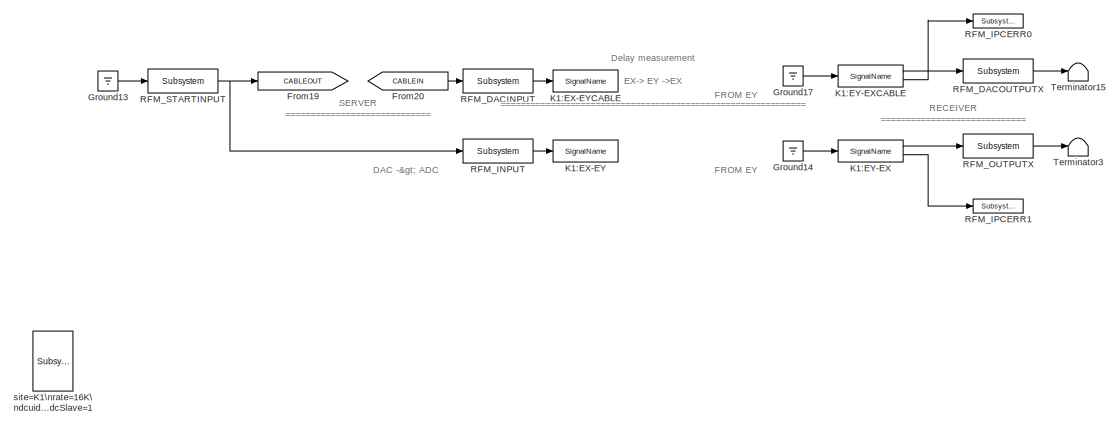
[diagram: root canvas - part 1/2, full width, top band]
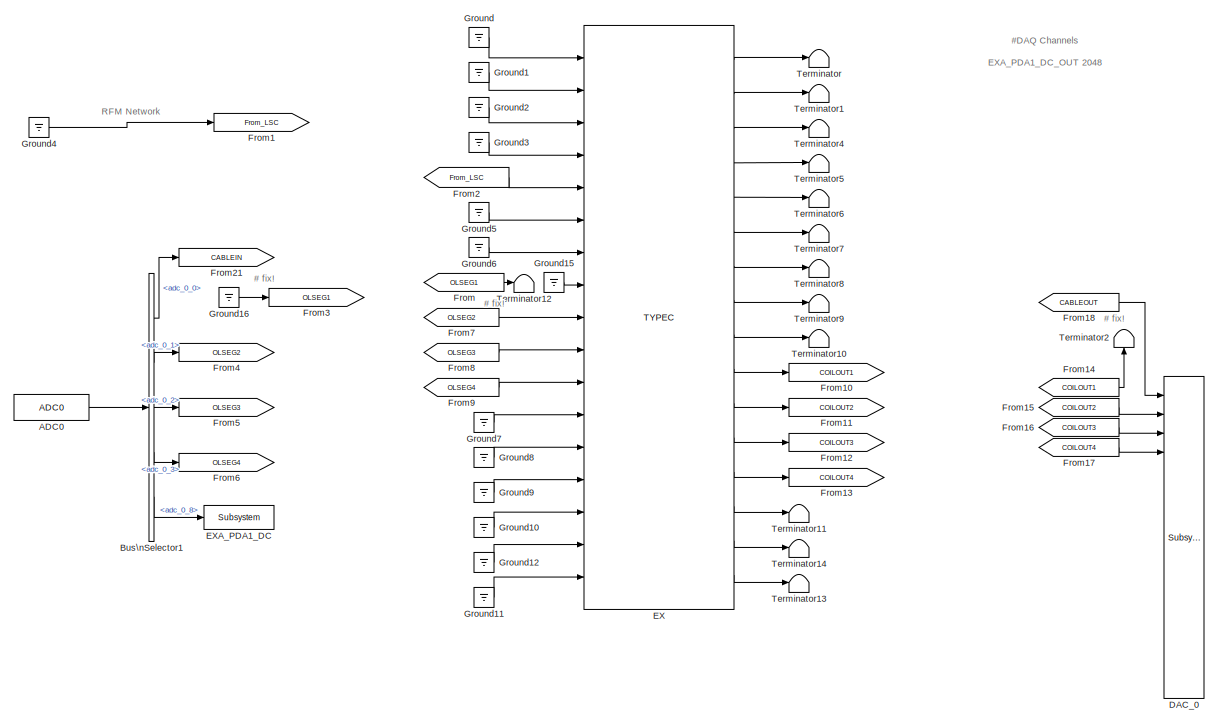
[diagram: root canvas - part 2/2, full width, bottom band]
MODEL k1visex
KIND model
BLOCK [Reference] ADC0  REF=cdsAdcx0/ADC0
  AttributesFormatString = %<Description>\\n%<Tag>
  Description = type-GSC_16AI64SSA\ncard_num=0
  Ports = [0, 1]
  SID = 4
  SourceBlock = cdsAdcx0/ADC0
  SourceType = SubSystem
  Tag = cdsAdc
BLOCK [BusSelector] Bus\nSelector1
  AttributesFormatString = %<Description>
  Description = ADC Selector
  OutputSignals = adc_0_0,adc_0_1,adc_0_2,adc_0_3,adc_0_8
  Ports = [1, 5]
  SID = 20
BLOCK [Reference] DAC_0  REF=dac/Subsystem  (lib defined in slx_40ef132df75b, slx_b7657ccccc5b, +4 more)
  AttributesFormatString = %<Description>
  Description = type=GSC_16AO16,\ncard_num=0
  Ports = [16]
  SID = 5
  SourceBlock = dac/Subsystem
  SourceType = SubSystem
BLOCK [Reference] EX  REF=TYPEC_MASTER/TYPEC
  AttributesFormatString = %<Description>
  Description = TYPEC MASTER
  Ports = [17, 16]
  SID = 37
  SourceBlock = TYPEC_MASTER/TYPEC
  SourceType = SubSystem
BLOCK [Reference] EXA_PDA1_DC  REF=cdsFilt/Subsystem
  AttributesFormatString = %<Tag>
  Description = Purpose:                                                                                                                                                                                                                                  \nStandard CDS IIR filter module.                                                                                                                                     ...<+1302ch>  <repeated x6 — deduplicated; at blocks: EXA_PDA1_DC, RFM_DACINPUT, RFM_DACOUTPUTX, RFM_INPUT, RFM_OUTPUTX, RFM_STARTINPUT>
  Ports = [1, 1]
  SID = 57
  SourceBlock = cdsFilt/Subsystem
  SourceType = SubSystem
  Tag = cdsFilt
BLOCK [From] From
  GotoTag = OLSEG1
  SID = 80
BLOCK [Goto] From1
  GotoTag = From_LSC
  SID = 67
BLOCK [Goto] From10
  GotoTag = COILOUT1
  SID = 89
BLOCK [Goto] From11
  GotoTag = COILOUT2
  SID = 90
BLOCK [Goto] From12
  GotoTag = COILOUT3
  SID = 91
BLOCK [Goto] From13
  GotoTag = COILOUT4
  SID = 92
BLOCK [From] From14
  GotoTag = COILOUT1
  SID = 93
BLOCK [From] From15
  GotoTag = COILOUT2
  SID = 94
BLOCK [From] From16
  GotoTag = COILOUT3
  SID = 95
BLOCK [From] From17
  GotoTag = COILOUT4
  SID = 96
BLOCK [From] From18
  GotoTag = CABLEOUT
  SID = 112
BLOCK [Goto] From19
  GotoTag = CABLEOUT
  SID = 113
BLOCK [From] From2
  GotoTag = From_LSC
  SID = 68
BLOCK [From] From20
  GotoTag = CABLEIN
  SID = 117
BLOCK [Goto] From21
  GotoTag = CABLEIN
  SID = 120
BLOCK [Goto] From3
  GotoTag = OLSEG1
  SID = 76
BLOCK [Goto] From4
  GotoTag = OLSEG2
  SID = 77
BLOCK [Goto] From5
  GotoTag = OLSEG3
  SID = 78
BLOCK [Goto] From6
  GotoTag = OLSEG4
  SID = 79
BLOCK [From] From7
  GotoTag = OLSEG2
  SID = 81
BLOCK [From] From8
  GotoTag = OLSEG3
  SID = 82
BLOCK [From] From9
  GotoTag = OLSEG4
  SID = 83
BLOCK [Ground] Ground
  SID = 22
BLOCK [Ground] Ground1
  SID = 23
BLOCK [Ground] Ground10
  SID = 24
BLOCK [Ground] Ground11
  SID = 25
BLOCK [Ground] Ground12
  SID = 26
BLOCK [Ground] Ground13
  SID = 103
BLOCK [Ground] Ground14
  SID = 104
BLOCK [Ground] Ground15
  SID = 119
BLOCK [Ground] Ground16
  SID = 121
BLOCK [Ground] Ground17
  SID = 125
BLOCK [Ground] Ground2
  SID = 27
BLOCK [Ground] Ground3
  SID = 28
BLOCK [Ground] Ground4
  SID = 29
BLOCK [Ground] Ground5
  SID = 30
BLOCK [Ground] Ground6
  SID = 31
BLOCK [Ground] Ground7
  SID = 32
BLOCK [Ground] Ground8
  SID = 33
BLOCK [Ground] Ground9
  SID = 34
BLOCK [Reference] K1:EX-EY  REF=cdsIPCx/SignalName
  AttributesFormatString = %<Description>\\n%<Tag>
  Description = card=0
  Ports = [1, 2]
  SID = 102
  SourceBlock = cdsIPCx/SignalName
  SourceType = SubSystem
  Tag = cdsIPCx_RFM
BLOCK [Reference] K1:EX-EYCABLE  REF=cdsIPCx/SignalName
  AttributesFormatString = %<Description>\\n%<Tag>
  Description = card=0
  Ports = [1, 2]
  SID = 122
  SourceBlock = cdsIPCx/SignalName
  SourceType = SubSystem
  Tag = cdsIPCx_RFM
BLOCK [Reference] K1:EY-EX  REF=cdsIPCx/SignalName
  AttributesFormatString = %<Description>\\n%<Tag>
  Description = card=0
  Ports = [1, 2]
  SID = 105
  SourceBlock = cdsIPCx/SignalName
  SourceType = SubSystem
  Tag = cdsIPCx_RFM
BLOCK [Reference] K1:EY-EXCABLE  REF=cdsIPCx/SignalName
  AttributesFormatString = %<Description>\\n%<Tag>
  Description = card=0
  Ports = [1, 2]
  SID = 126
  SourceBlock = cdsIPCx/SignalName
  SourceType = SubSystem
  Tag = cdsIPCx_RFM
BLOCK [Reference] RFM_DACINPUT  REF=cdsFilt/Subsystem
  AttributesFormatString = %<Tag>
  Ports = [1, 1]
  SID = 140
  SourceBlock = cdsFilt/Subsystem
  SourceType = SubSystem
  Tag = cdsFilt
BLOCK [Reference] RFM_DACOUTPUTX  REF=cdsFilt/Subsystem
  AttributesFormatString = %<Tag>
  Ports = [1, 1]
  SID = 128
  SourceBlock = cdsFilt/Subsystem
  SourceType = SubSystem
  Tag = cdsFilt
BLOCK [Reference] RFM_INPUT  REF=cdsFilt/Subsystem
  AttributesFormatString = %<Tag>
  Ports = [1, 1]
  SID = 101
  SourceBlock = cdsFilt/Subsystem
  SourceType = SubSystem
  Tag = cdsFilt
BLOCK [Reference] RFM_IPCERR0  REF=cdsEpicsOut/Subsystem
  AttributesFormatString = %<Tag>
  Description = Purpose:                                          \nOutput a FE signal to an EPICS channel.           \n                                                  \nOperation:                                        \nTakes input value and passes it to EPICS record.  \n                                                  \nUsage:                                            \nName the part with the desired EPICS...<+14ch>
  Ports = [1, 1]
  SID = 127
  SourceBlock = cdsEpicsOut/Subsystem
  SourceType = SubSystem
  Tag = cdsEpicsOutput
BLOCK [Reference] RFM_IPCERR1  REF=cdsEpicsOut/Subsystem
  AttributesFormatString = %<Tag>
  Description = Purpose:                                          \nOutput a FE signal to an EPICS channel.           \n                                                  \nOperation:                                        \nTakes input value and passes it to EPICS record.  \n                                                  \nUsage:                                            \nName the part with the desired EPICS...<+14ch>
  Ports = [1, 1]
  SID = 106
  SourceBlock = cdsEpicsOut/Subsystem
  SourceType = SubSystem
  Tag = cdsEpicsOutput
BLOCK [Reference] RFM_OUTPUTX  REF=cdsFilt/Subsystem
  AttributesFormatString = %<Tag>
  Ports = [1, 1]
  SID = 107
  SourceBlock = cdsFilt/Subsystem
  SourceType = SubSystem
  Tag = cdsFilt
BLOCK [Reference] RFM_STARTINPUT  REF=cdsFilt/Subsystem
  AttributesFormatString = %<Tag>
  Ports = [1, 1]
  SID = 141
  SourceBlock = cdsFilt/Subsystem
  SourceType = SubSystem
  Tag = cdsFilt
BLOCK [Terminator] Terminator
  SID = 40
BLOCK [Terminator] Terminator1
  SID = 41
BLOCK [Terminator] Terminator10
  SID = 42
BLOCK [Terminator] Terminator11
  SID = 43
BLOCK [Terminator] Terminator12
  SID = 118
BLOCK [Terminator] Terminator13
  SID = 44
BLOCK [Terminator] Terminator14
  SID = 45
BLOCK [Terminator] Terminator15
  SID = 129
BLOCK [Terminator] Terminator2
  SID = 111
BLOCK [Terminator] Terminator3
  SID = 108
BLOCK [Terminator] Terminator4
  SID = 46
BLOCK [Terminator] Terminator5
  SID = 47
BLOCK [Terminator] Terminator6
  SID = 48
BLOCK [Terminator] Terminator7
  SID = 49
BLOCK [Terminator] Terminator8
  SID = 50
BLOCK [Terminator] Terminator9
  SID = 51
BLOCK [Reference] site=K1\nrate=16K\ndcuid=42\nhost=k1ex0\nspecific_cpu=38\nadcSlave=1  REF=cdsParameters/Subsystem
  AttributesFormatString = %<Tag>
  Description = Purpose:                                                                                                                                                                                                                                \nProvide system parameters to the FE code generator to properly configure the generated EPICS names, rep rate of the FE controller, and the Data Acquisition node ID fo...<+2934ch>
  Ports = [1, 1]
  SID = 1
  SourceBlock = cdsParameters/Subsystem
  SourceType = SubSystem
  Tag = cdsParameters
ANNOTATION (root): # fix!
ANNOTATION (root): #DAQ Channels\n\nEXA_PDA1_DC_OUT 2048
ANNOTATION (root): \n \n DAC -> ADC
ANNOTATION (root): \n \n FROM EY
ANNOTATION (root): \n \n RFM Network
ANNOTATION (root): Delay measurement \nEX-> EY ->EX\n=============================================================\n
ANNOTATION (root): RECEIVER\n=============================
ANNOTATION (root): SERVER\n=============================
LINE ADC0:1 -> Bus\nSelector1:1
LINE Bus\nSelector1:1 -> From21:1
LINE Bus\nSelector1:2 -> From4:1
LINE Bus\nSelector1:3 -> From5:1
LINE Bus\nSelector1:4 -> From6:1
LINE Bus\nSelector1:5 -> EXA_PDA1_DC:1
LINE EX:1 -> Terminator:1
LINE EX:10 -> From10:1
LINE EX:11 -> From11:1
LINE EX:12 -> From12:1
LINE EX:13 -> From13:1
LINE EX:14 -> Terminator11:1
LINE EX:15 -> Terminator14:1
LINE EX:16 -> Terminator13:1
LINE EX:2 -> Terminator1:1
LINE EX:3 -> Terminator4:1
LINE EX:4 -> Terminator5:1
LINE EX:5 -> Terminator6:1
LINE EX:6 -> Terminator7:1
LINE EX:7 -> Terminator8:1
LINE EX:8 -> Terminator9:1
LINE EX:9 -> Terminator10:1
LINE From14:1 -> Terminator2:1
LINE From15:1 -> DAC_0:2
LINE From16:1 -> DAC_0:3
LINE From17:1 -> DAC_0:4
LINE From18:1 -> DAC_0:1
LINE From20:1 -> RFM_DACINPUT:1
LINE From2:1 -> EX:5
LINE From7:1 -> EX:9
LINE From8:1 -> EX:10
LINE From9:1 -> EX:11
LINE From:1 -> Terminator12:1
LINE Ground10:1 -> EX:15
LINE Ground11:1 -> EX:17
LINE Ground12:1 -> EX:16
LINE Ground13:1 -> RFM_STARTINPUT:1
LINE Ground14:1 -> K1:EY-EX:1
LINE Ground15:1 -> EX:8
LINE Ground16:1 -> From3:1
LINE Ground17:1 -> K1:EY-EXCABLE:1
LINE Ground1:1 -> EX:2
LINE Ground2:1 -> EX:3
LINE Ground3:1 -> EX:4
LINE Ground4:1 -> From1:1
LINE Ground5:1 -> EX:6
LINE Ground6:1 -> EX:7
LINE Ground7:1 -> EX:12
LINE Ground8:1 -> EX:13
LINE Ground9:1 -> EX:14
LINE Ground:1 -> EX:1
LINE K1:EY-EX:1 -> RFM_OUTPUTX:1
LINE K1:EY-EX:2 -> RFM_IPCERR1:1
LINE K1:EY-EXCABLE:1 -> RFM_DACOUTPUTX:1
LINE K1:EY-EXCABLE:2 -> RFM_IPCERR0:1
LINE RFM_DACINPUT:1 -> K1:EX-EYCABLE:1
LINE RFM_DACOUTPUTX:1 -> Terminator15:1
LINE RFM_INPUT:1 -> K1:EX-EY:1
LINE RFM_OUTPUTX:1 -> Terminator3:1
NET RFM_STARTINPUT:1 -> From19:1, RFM_INPUT:1
note: NET lines group one-source signal fan-out (src -> all destinations, sorted); 1:1 wires keep LINE
